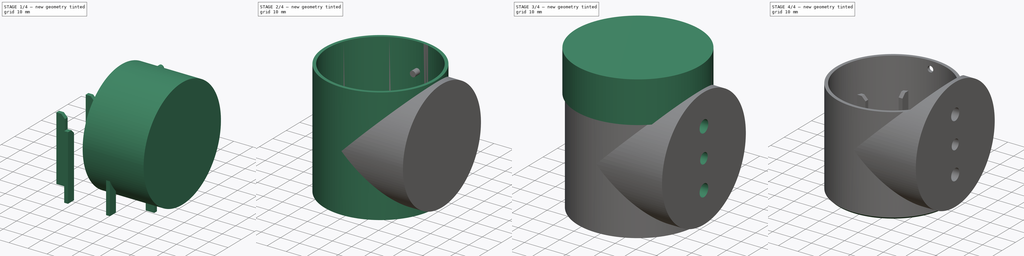
[diagram: build sequence overview — one tinted view per stage of 4, left to right]
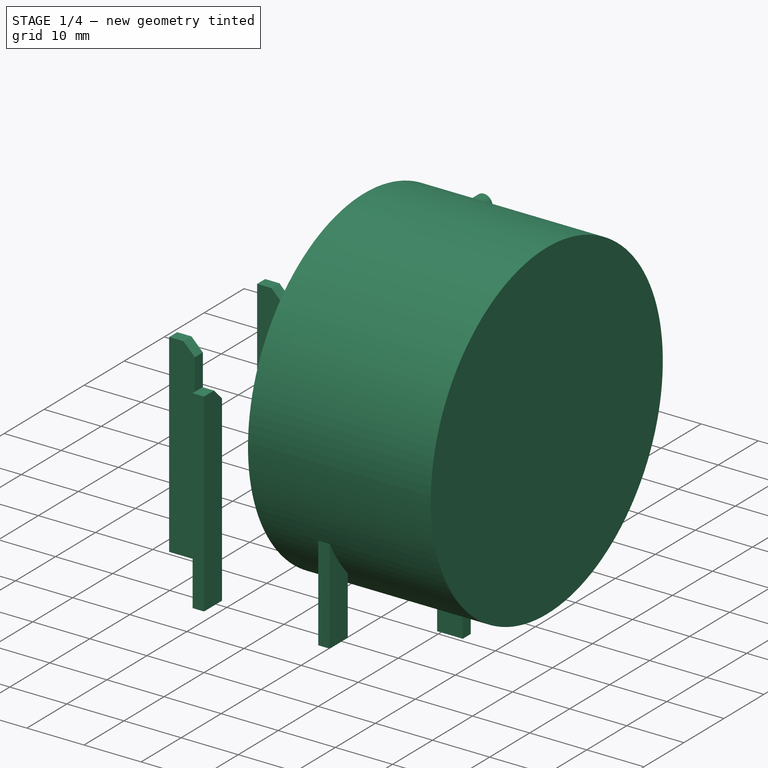
[diagram: stage 1 of 4 — iso view after this stage's code; geometry added in this stage tinted green]
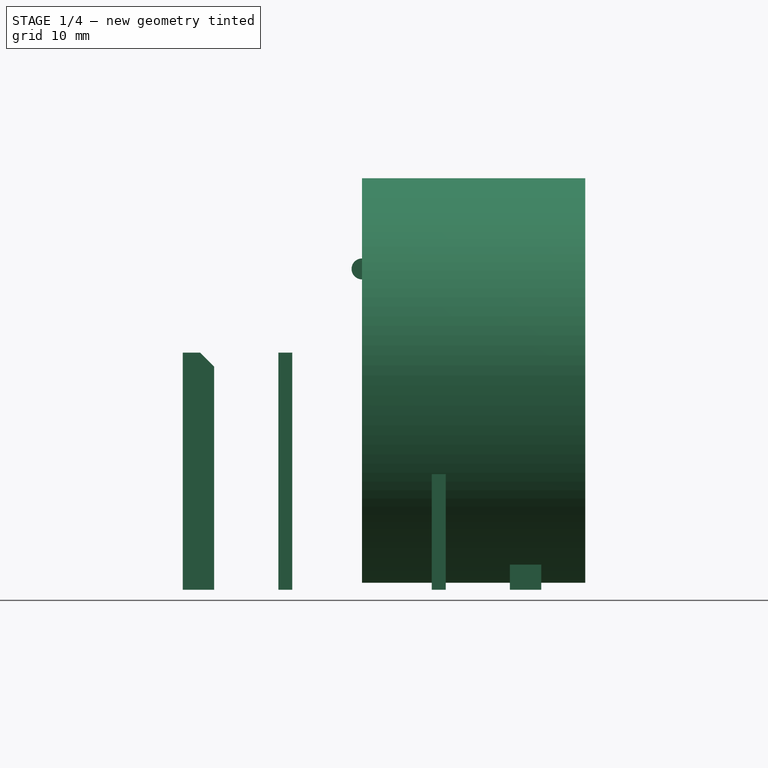
[diagram: stage 1 of 4 — front view after this stage's code; geometry added in this stage tinted green]
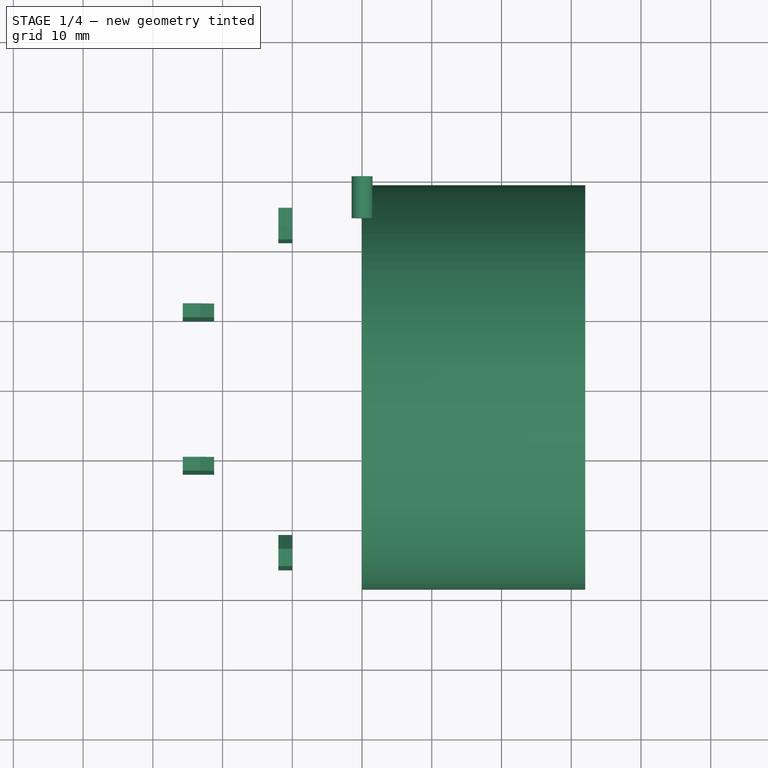
[diagram: stage 1 of 4 — top view after this stage's code; geometry added in this stage tinted green]
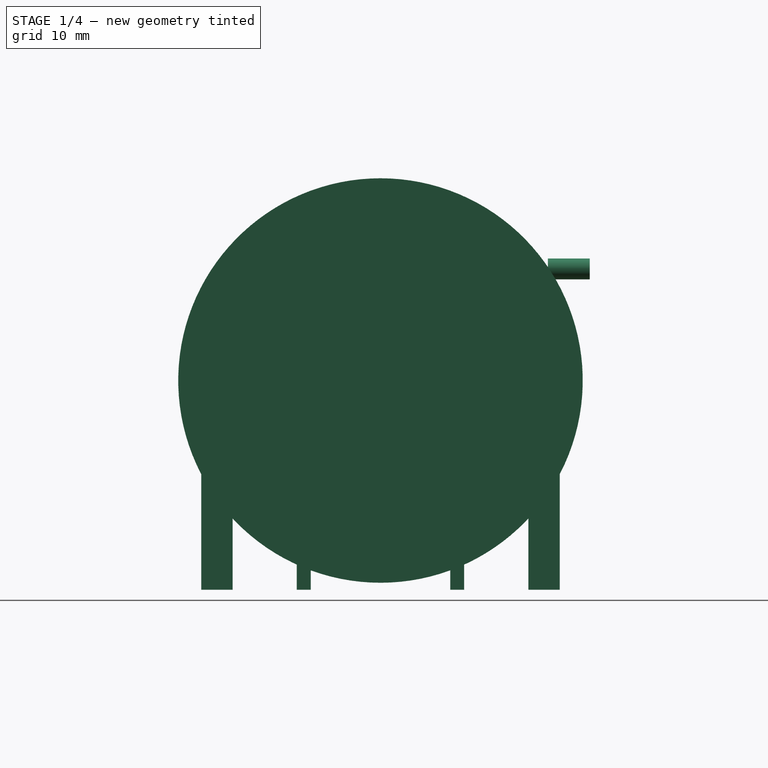
[diagram: stage 1 of 4 — right view after this stage's code; geometry added in this stage tinted green]
FCSTD DOCUMENT  (FreeCAD 0.15R4671 (Git))
Label: elevation_enclosure2
License: CreativeCommons Attribution-ShareAlike
LicenseURL: http://creativecommons.org/licenses/by-sa/4.0/
objects: Part::Cylinder×4, Sketcher::SketchObject×4, PartDesign::Pocket×3, Part::MultiFuse×2, Part::Cut×2, PartDesign::Pad×1, PartDesign::Chamfer×1, Part::Chamfer×1
note: 22 computed .brp shape members not serialized (recipe doc carries the construction recipe); baked Part::Feature solids carry a one-line shape summary decoded from their .brp

FEATURE [Part::Cylinder] Cylinder001
  Angle = 360
  Height = 32
  Placement = pos=(0,0,30) rot=(0,1,0;1.5708rad)
  Radius = 29
FEATURE [Sketcher::SketchObject] Sketch003
  sketch-geometry (36):
    g0: LineSegment StartX=-12 StartY=25.7 StartZ=0 EndX=-10 EndY=25.7 EndZ=0
    g1: LineSegment StartX=-10 StartY=25.7 StartZ=0 EndX=-10 EndY=21.2 EndZ=0
    g2: LineSegment StartX=-10 StartY=21.2 StartZ=0 EndX=-12 EndY=21.2 EndZ=0
    g3: LineSegment StartX=-12 StartY=21.2 StartZ=0 EndX=-12 EndY=25.7 EndZ=0
    g4: LineSegment StartX=10 StartY=25.7 StartZ=0 EndX=12 EndY=25.7 EndZ=0
    g5: LineSegment StartX=12 StartY=25.7 StartZ=0 EndX=12 EndY=21.2 EndZ=0
    g6: LineSegment StartX=12 StartY=21.2 StartZ=0 EndX=10 EndY=21.2 EndZ=0
    g7: LineSegment StartX=10 StartY=21.2 StartZ=0 EndX=10 EndY=25.7 EndZ=0
    g8: LineSegment StartX=-12 StartY=-21.2 StartZ=0 EndX=-10 EndY=-21.2 EndZ=0
    g9: LineSegment StartX=-10 StartY=-21.2 StartZ=0 EndX=-10 EndY=-25.7 EndZ=0
    g10: LineSegment StartX=-10 StartY=-25.7 StartZ=0 EndX=-12 EndY=-25.7 EndZ=0
    g11: LineSegment StartX=-12 StartY=-25.7 StartZ=0 EndX=-12 EndY=-21.2 EndZ=0
    g12: LineSegment StartX=10 StartY=-21.2 StartZ=0 EndX=12 EndY=-21.2 EndZ=0
    g13: LineSegment StartX=12 StartY=-21.2 StartZ=0 EndX=12 EndY=-25.7 EndZ=0
    g14: LineSegment StartX=12 StartY=-25.7 StartZ=0 EndX=10 EndY=-25.7 EndZ=0
    g15: LineSegment StartX=10 StartY=-25.7 StartZ=0 EndX=10 EndY=-21.2 EndZ=0
    g16: LineSegment StartX=-25.7 StartY=12 StartZ=0 EndX=-21.2 EndY=12 EndZ=0
    g17: LineSegment StartX=-21.2 StartY=12 StartZ=0 EndX=-21.2 EndY=10 EndZ=0
    g18: LineSegment StartX=-21.2 StartY=10 StartZ=0 EndX=-25.7 EndY=10 EndZ=0
    g19: LineSegment StartX=-25.7 StartY=10 StartZ=0 EndX=-25.7 EndY=12 EndZ=0
    g20: LineSegment StartX=-25.7 StartY=-10 StartZ=0 EndX=-21.2 EndY=-10 EndZ=0
    g21: LineSegment StartX=-21.2 StartY=-10 StartZ=0 EndX=-21.2 EndY=-12 EndZ=0
    g22: LineSegment StartX=-21.2 StartY=-12 StartZ=0 EndX=-25.7 EndY=-12 EndZ=0
    g23: LineSegment StartX=-25.7 StartY=-12 StartZ=0 EndX=-25.7 EndY=-10 EndZ=0
    g24: LineSegment StartX=21.2 StartY=12 StartZ=0 EndX=25.7 EndY=12 EndZ=0
    g25: LineSegment StartX=25.7 StartY=12 StartZ=0 EndX=25.7 EndY=10 EndZ=0
    g26: LineSegment StartX=25.7 StartY=10 StartZ=0 EndX=21.2 EndY=10 EndZ=0
    g27: LineSegment StartX=21.2 StartY=10 StartZ=0 EndX=21.2 EndY=12 EndZ=0
    g28: LineSegment StartX=21.2 StartY=-10 StartZ=0 EndX=25.7 EndY=-10 EndZ=0
    g29: LineSegment StartX=25.7 StartY=-10 StartZ=0 EndX=25.7 EndY=-12 EndZ=0
    g30: LineSegment StartX=25.7 StartY=-12 StartZ=0 EndX=21.2 EndY=-12 EndZ=0
    g31: LineSegment StartX=21.2 StartY=-12 StartZ=0 EndX=21.2 EndY=-10 EndZ=0
    g32: LineSegment [constr] StartX=-12 StartY=21.2 StartZ=0 EndX=-12 EndY=-21.2 EndZ=0
    g33: LineSegment [constr] StartX=-21.2 StartY=12 StartZ=0 EndX=21.2 EndY=12 EndZ=0
    g34: LineSegment [constr] StartX=-21.2 StartY=10 StartZ=0 EndX=-21.2 EndY=-10 EndZ=0
    g35: LineSegment [constr] StartX=-10 StartY=21.2 StartZ=0 EndX=10 EndY=21.2 EndZ=0
  constraints (98):
    c: Coincident(g0,g1)
    c: Coincident(g1,g2)
    c: Coincident(g2,g3)
    c: Coincident(g3,g0)
    c: Horizontal(g0)
    c: Horizontal(g2)
    c: Vertical(g1)
    c: Vertical(g3)
    c: Coincident(g4,g5)
    c: Coincident(g5,g6)
    c: Coincident(g6,g7)
    c: Coincident(g7,g4)
    c: Horizontal(g4)
    c: Horizontal(g6)
    c: Vertical(g5)
    c: Vertical(g7)
    c: Coincident(g8,g9)
    c: Coincident(g9,g10)
    c: Coincident(g10,g11)
    c: Coincident(g11,g8)
    c: Horizontal(g8)
    c: Horizontal(g10)
    c: Vertical(g9)
    c: Vertical(g11)
    c: Coincident(g12,g13)
    c: Coincident(g13,g14)
    c: Coincident(g14,g15)
    c: Coincident(g15,g12)
    c: Horizontal(g12)
    c: Horizontal(g14)
    c: Vertical(g13)
    c: Vertical(g15)
    c: Coincident(g16,g17)
    c: Coincident(g17,g18)
    c: Coincident(g18,g19)
    c: Coincident(g19,g16)
    c: Horizontal(g16)
    c: Horizontal(g18)
    c: Vertical(g17)
    c: Vertical(g19)
    c: Coincident(g20,g21)
    c: Coincident(g21,g22)
    c: Coincident(g22,g23)
    c: Coincident(g23,g20)
    c: Horizontal(g20)
    c: Horizontal(g22)
    c: Vertical(g21)
    c: Vertical(g23)
    c: Coincident(g24,g25)
    c: Coincident(g25,g26)
    c: Coincident(g26,g27)
    c: Coincident(g27,g24)
    c: Horizontal(g24)
    c: Horizontal(g26)
    c: Vertical(g25)
    c: Vertical(g27)
    c: Coincident(g28,g29)
    c: Coincident(g29,g30)
    c: Coincident(g30,g31)
    c: Coincident(g31,g28)
    c: Horizontal(g28)
    c: Horizontal(g30)
    c: Vertical(g29)
    c: Vertical(g31)
    c: Equal(g2,g6)
    c: Equal(g6,g27)
    c: Equal(g27,g31)
    c: Equal(g31,g12)
    c: Equal(g12,g8)
    c: Equal(g8,g21)
    c: Equal(g21,g17)
    c: Equal(g16,g1)
    c: Equal(g1,g5)
    c: Equal(g5,g26)
    c: Equal(g26,g30)
    c: Equal(g30,g15)
    c: Equal(g15,g11)
    c: Equal(g11,g20)
    c: Symmetric(g1,g6,g-2)
    c: Symmetric(g8,g12,g-2)
    c: Symmetric(g1,g8,g-1)
    c: DistanceX(g0) = 2
    c: DistanceY(g3) = 4.5
    c: Symmetric(g17,g20,g-1)
    c: Symmetric(g26,g28,g-1)
    c: Symmetric(g17,g26,g-2)
    c: Coincident(g32,g2)
    c: Coincident(g33,g16)
    c: Coincident(g34,g17)
    c: Coincident(g35,g1)
    c: Coincident(g35,g6)
    c: Coincident(g33,g24)
    c: Coincident(g34,g20)
    c: Coincident(g32,g8)
    c: Equal(g34,g35)
    c: Equal(g33,g32)
    c: DistanceX(g-1,g1) = -10
    c: DistanceX(g-1,g24) = 21.2
FEATURE [PartDesign::Pad] Pad
  Length = 34
  Length2 = 100
  Sketch = -> Sketch003
  Type = 0
FEATURE [PartDesign::Chamfer] Chamfer
  Base = -> Pad [Edge31,Edge64,Edge43,Edge94,Edge52,Edge12,Edge24,Edge82]
  Size = 2
FEATURE [Part::Cylinder] Cylinder003
  Angle = 360
  Height = 6
  Placement = pos=(0,30,46) rot=(1,0,0;1.5708rad)
  Radius = 1.5
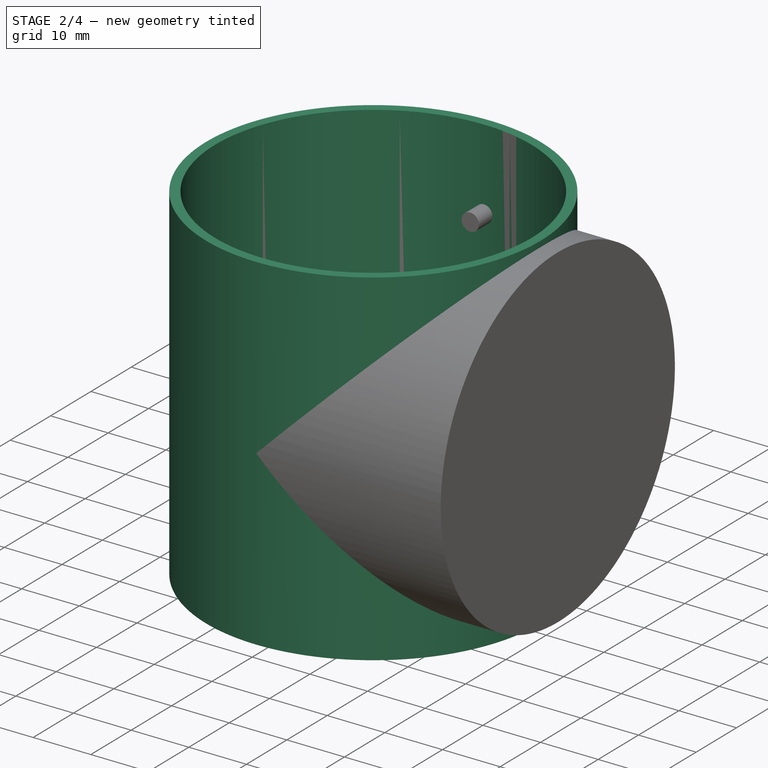
[diagram: stage 2 of 4 — iso view after this stage's code; geometry added in this stage tinted green]
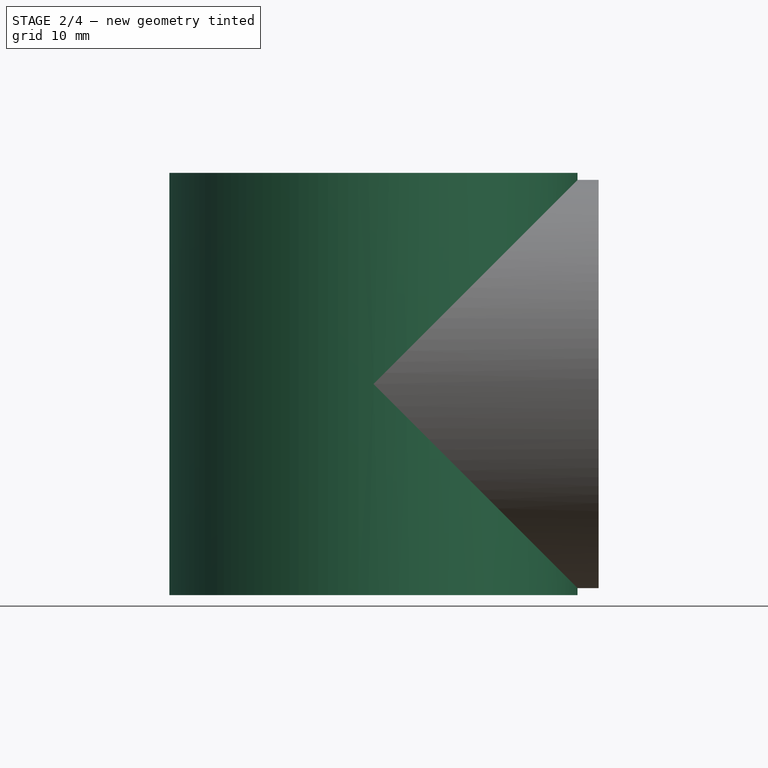
[diagram: stage 2 of 4 — front view after this stage's code; geometry added in this stage tinted green]
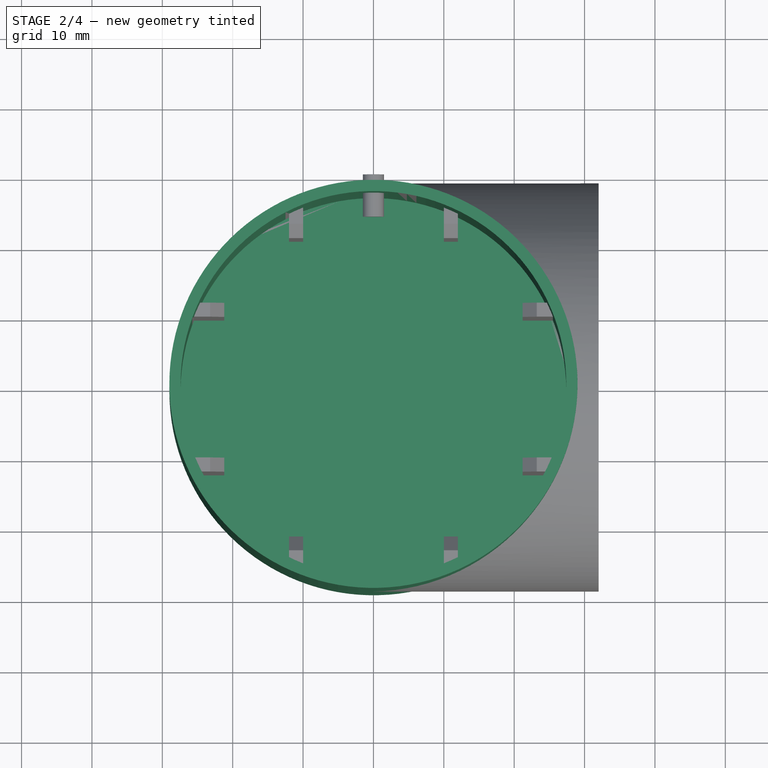
[diagram: stage 2 of 4 — top view after this stage's code; geometry added in this stage tinted green]
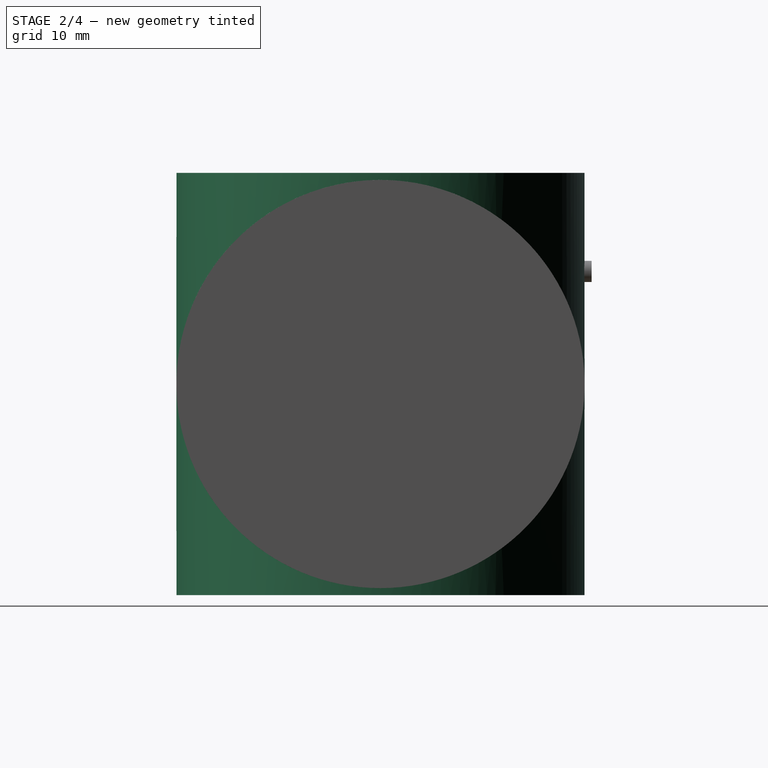
[diagram: stage 2 of 4 — right view after this stage's code; geometry added in this stage tinted green]
FEATURE [Part::Cylinder] Cylinder
  Angle = 360
  Height = 60
  Radius = 29
FEATURE [Part::MultiFuse] Fusion
  Shapes = -> [Cylinder,Cylinder001]
FEATURE [Sketcher::SketchObject] Sketch
  Placement = pos=(0,0,60) rot=(0,0,1;0rad)
  Support = -> Fusion [Face4]
  sketch-geometry (1):
    g0: Circle CenterX=0 CenterY=0 CenterZ=0 NormalX=0 NormalY=0 NormalZ=1 Radius=27.4
  constraints (2):
    c: Coincident(g0,g-1)
    c: Radius(g0) = 27.4
FEATURE [PartDesign::Pocket] Pocket
  Length = 58
  Sketch = -> Sketch
  Type = 0
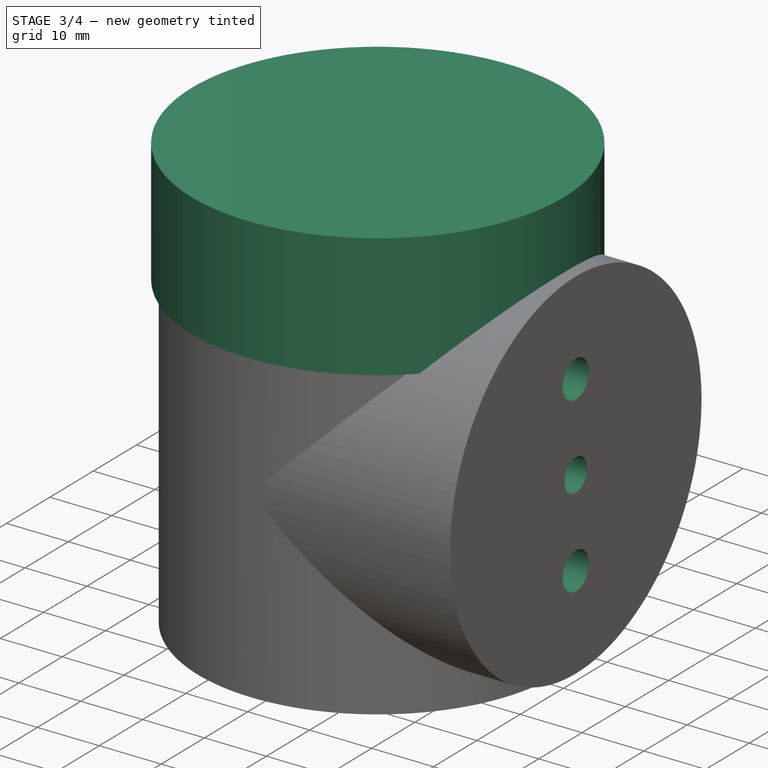
[diagram: stage 3 of 4 — iso view after this stage's code; geometry added in this stage tinted green]
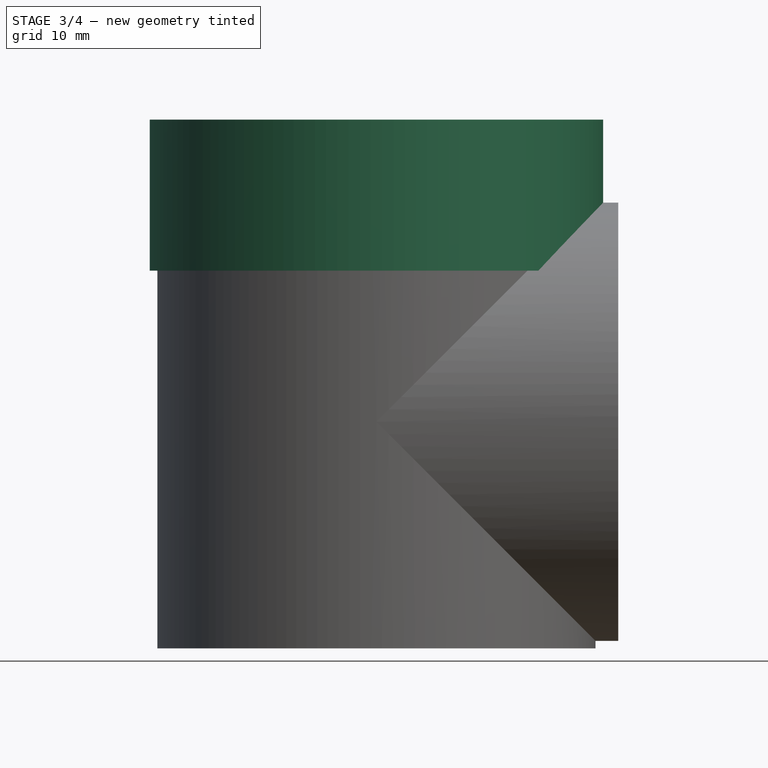
[diagram: stage 3 of 4 — front view after this stage's code; geometry added in this stage tinted green]
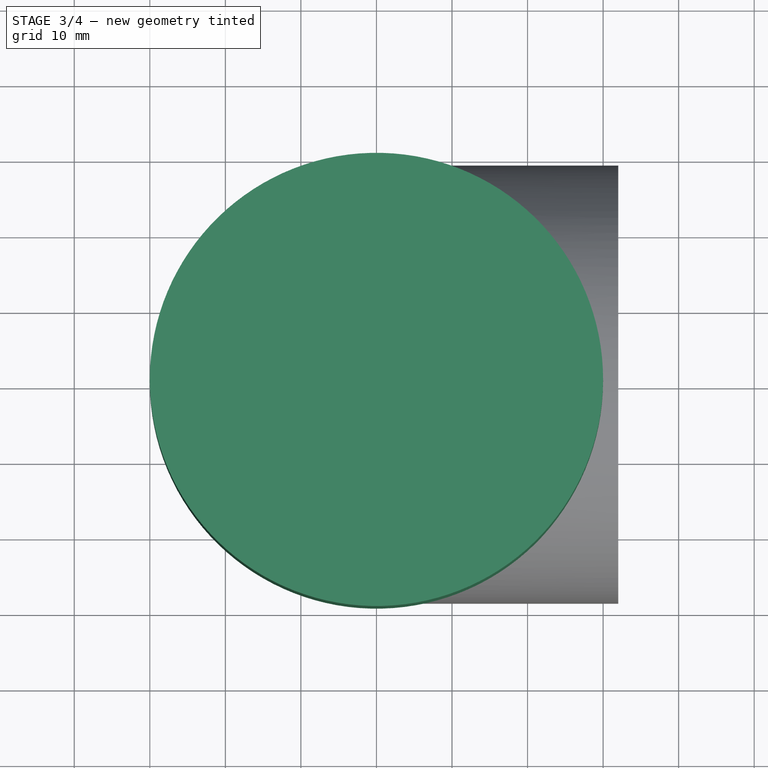
[diagram: stage 3 of 4 — top view after this stage's code; geometry added in this stage tinted green]
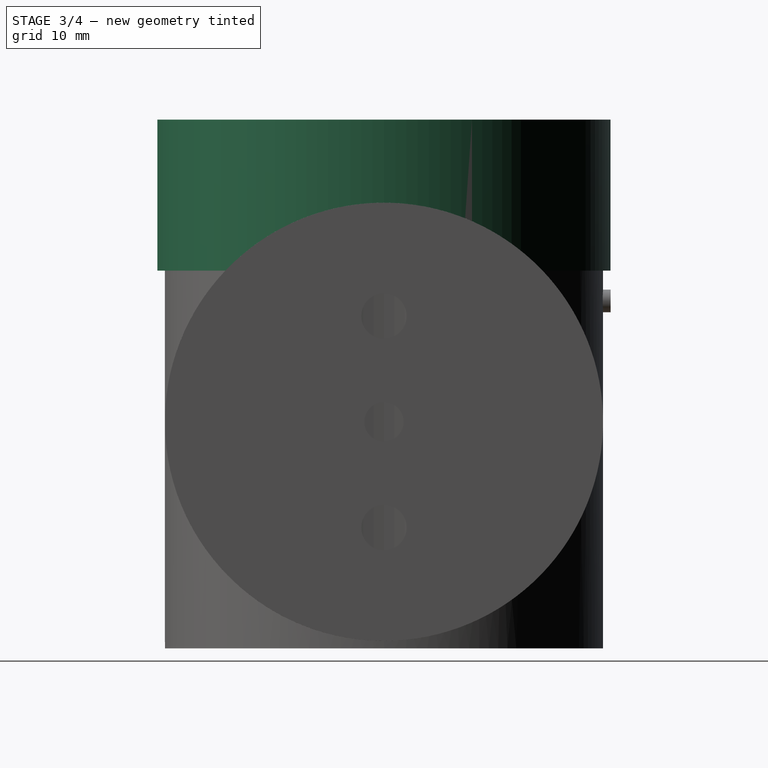
[diagram: stage 3 of 4 — right view after this stage's code; geometry added in this stage tinted green]
FEATURE [Part::Cylinder] Cylinder002
  Angle = 360
  Height = 20
  Placement = pos=(0,0,50) rot=(0,0,1;0rad)
  Radius = 30
FEATURE [Sketcher::SketchObject] Sketch002
  ExternalGeometry = -> [Pocket]
  Placement = pos=(32,0,0) rot=(0.57735,0.57735,0.57735;2.0944rad)
  Support = -> Pocket [Face5]
  sketch-geometry (3):
    g0: Circle CenterX=0 CenterY=30 CenterZ=0 NormalX=0 NormalY=0 NormalZ=1 Radius=2.6
    g1: Circle CenterX=0 CenterY=44 CenterZ=0 NormalX=0 NormalY=0 NormalZ=1 Radius=3
    g2: Circle CenterX=0 CenterY=16 CenterZ=0 NormalX=0 NormalY=0 NormalZ=1 Radius=3
  constraints (8):
    c: Radius(g0) = 2.6
    c: Equal(g1,g2)
    c: Radius(g1) = 3
    c: Coincident(g-3,g0)
    c: PointOnObject(g1,g-2)
    c: DistanceY(g1,g0) = -14
    c: PointOnObject(g2,g-2)
    c: DistanceY(g0,g2) = -14
FEATURE [PartDesign::Pocket] Pocket002
  Length = 6
  Sketch = -> Sketch002
  Type = 0
FEATURE [Sketcher::SketchObject] Sketch001
  Placement = pos=(0,0,2) rot=(0,0,1;0rad)
  Support = -> Pocket002 [Face10]
  sketch-geometry (6):
    g0: LineSegment [constr] StartX=-15.5 StartY=15.5 StartZ=0 EndX=15.5 EndY=15.5 EndZ=0
    g1: LineSegment [constr] StartX=-15.5 StartY=15.5 StartZ=0 EndX=-15.5 EndY=-15.5 EndZ=0
    g2: Circle CenterX=-15.5 CenterY=15.5 CenterZ=0 NormalX=0 NormalY=0 NormalZ=1 Radius=1.7
    g3: Circle CenterX=15.5 CenterY=15.5 CenterZ=0 NormalX=0 NormalY=0 NormalZ=1 Radius=1.7
    g4: Circle CenterX=-15.5 CenterY=-15.5 CenterZ=0 NormalX=0 NormalY=0 NormalZ=1 Radius=1.7
    g5: Circle CenterX=15.5 CenterY=-15.5 CenterZ=0 NormalX=0 NormalY=0 NormalZ=1 Radius=1.7
  constraints (15):
    c: Horizontal(g0)
    c: Coincident(g1,g0)
    c: Vertical(g1)
    c: Equal(g1,g0)
    c: DistanceX(g0) = 31
    c: Symmetric(g0,g0,g-2)
    c: Symmetric(g0,g1,g-1)
    c: Coincident(g2,g0)
    c: Coincident(g3,g0)
    c: Coincident(g4,g1)
    c: Equal(g4,g5)
    c: Equal(g5,g3)
    c: Equal(g3,g2)
    c: Radius(g2) = 1.7
    c: Symmetric(g5,g1,g-2)
FEATURE [PartDesign::Pocket] Pocket003
  Length = 5
  Sketch = -> Sketch001
  Type = 0
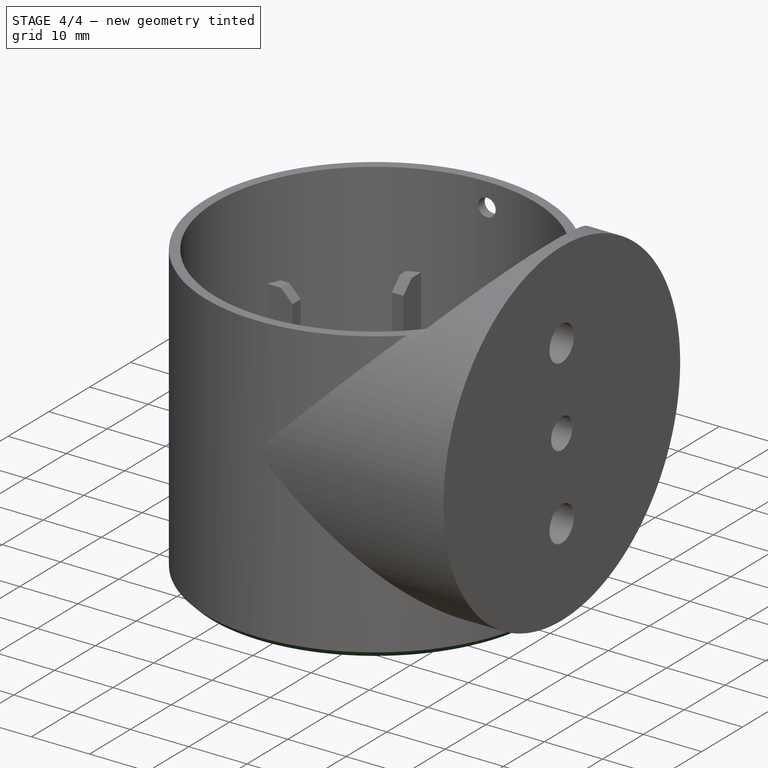
[diagram: stage 4 of 4 — iso view after this stage's code; geometry added in this stage tinted green]
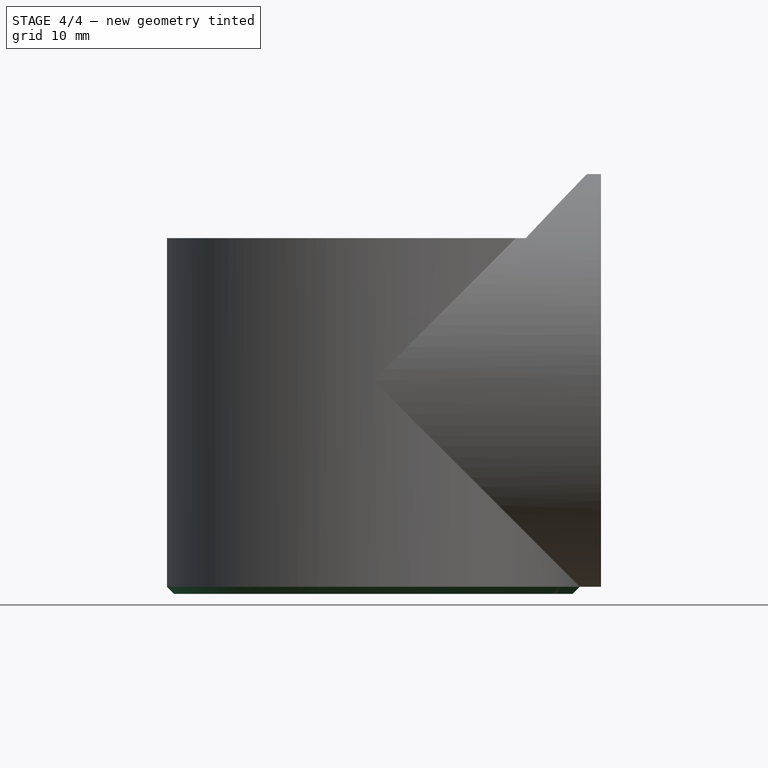
[diagram: stage 4 of 4 — front view after this stage's code; geometry added in this stage tinted green]
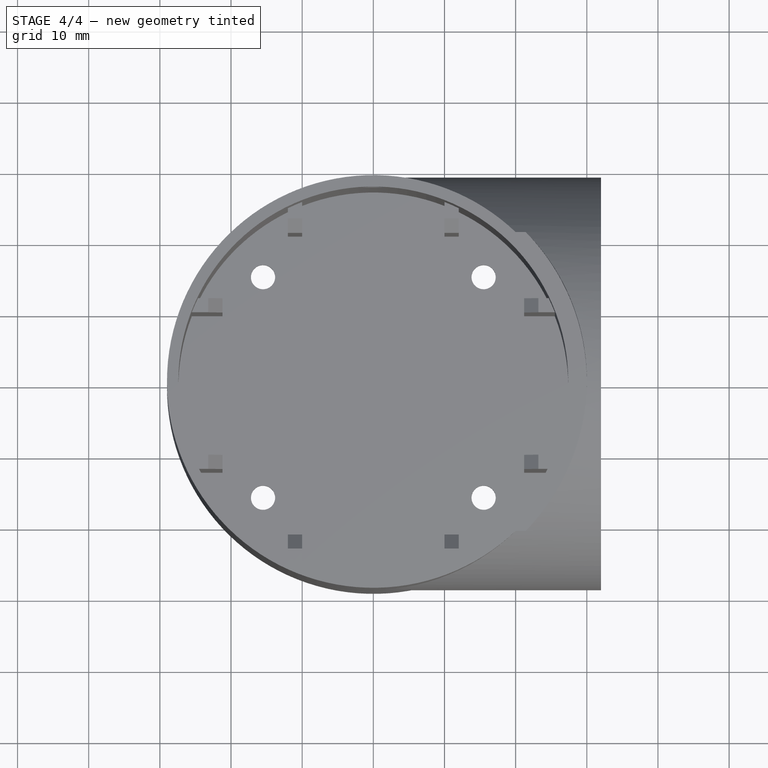
[diagram: stage 4 of 4 — top view after this stage's code; geometry added in this stage tinted green]
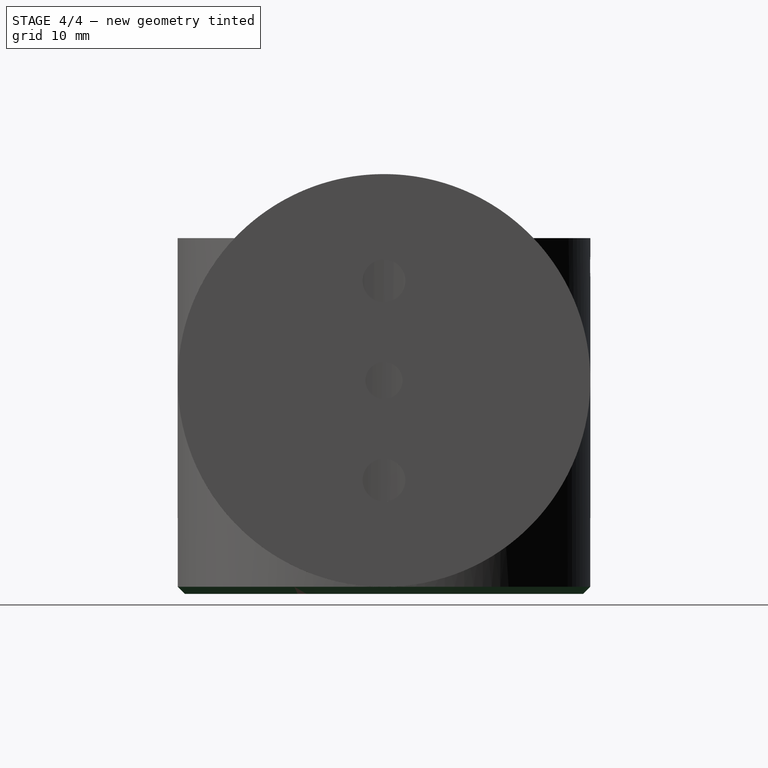
[diagram: stage 4 of 4 — right view after this stage's code; geometry added in this stage tinted green]
FEATURE [Part::Cut] Cut
  Base = -> Pocket003
  Tool = -> Cylinder002
FEATURE [Part::MultiFuse] Fusion001
  Shapes = -> [Chamfer,Cut]
FEATURE [Part::Chamfer] Chamfer001
  Base = -> Fusion001
  Edges = 1 edges r=1: [Edge171]
FEATURE [Part::Cut] Cut001
  Base = -> Chamfer001
  Tool = -> Cylinder003
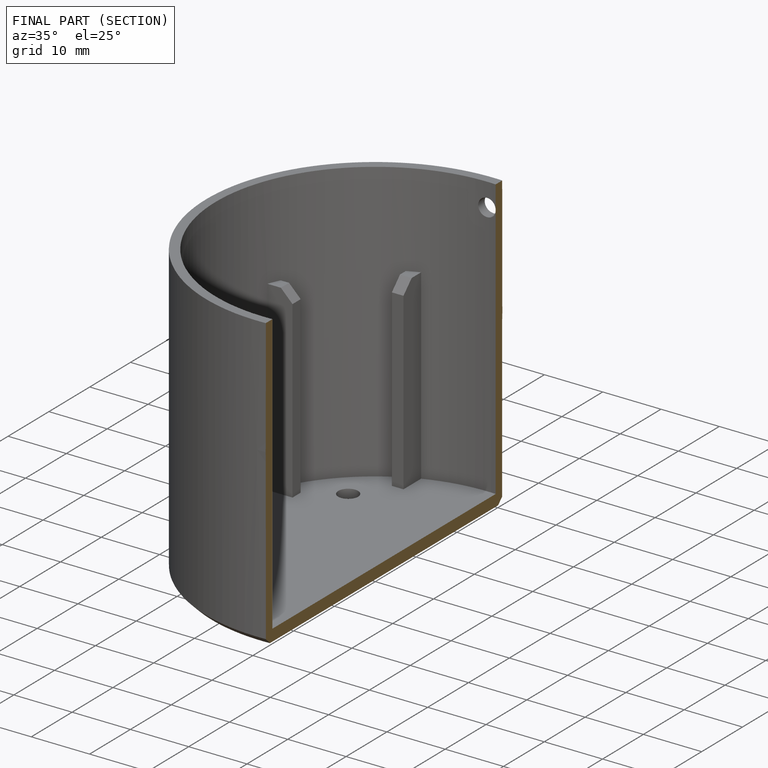
[diagram: finished part — half-section view (interior)]
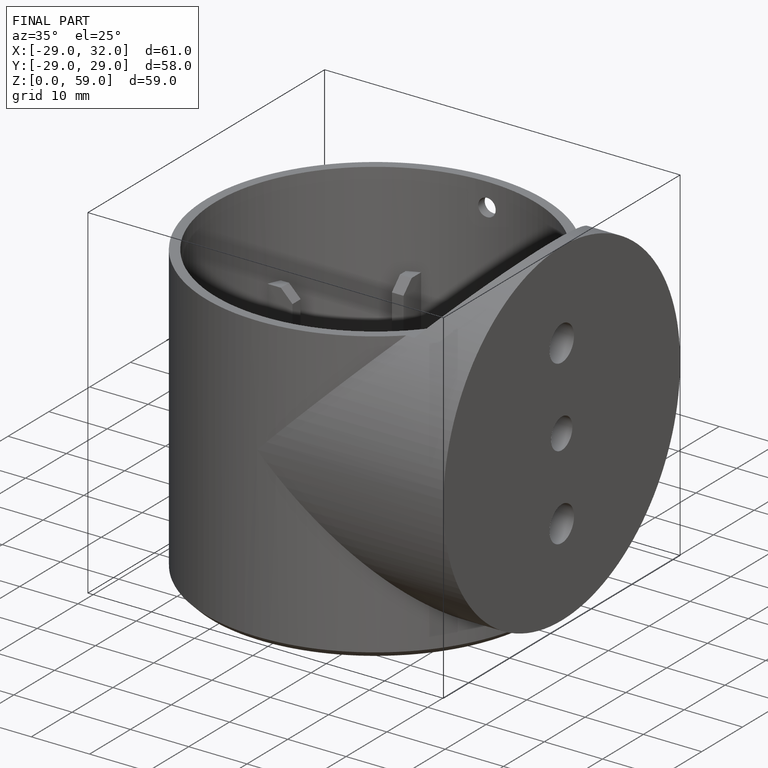
[diagram: finished part — iso view with bounding-box wireframe]
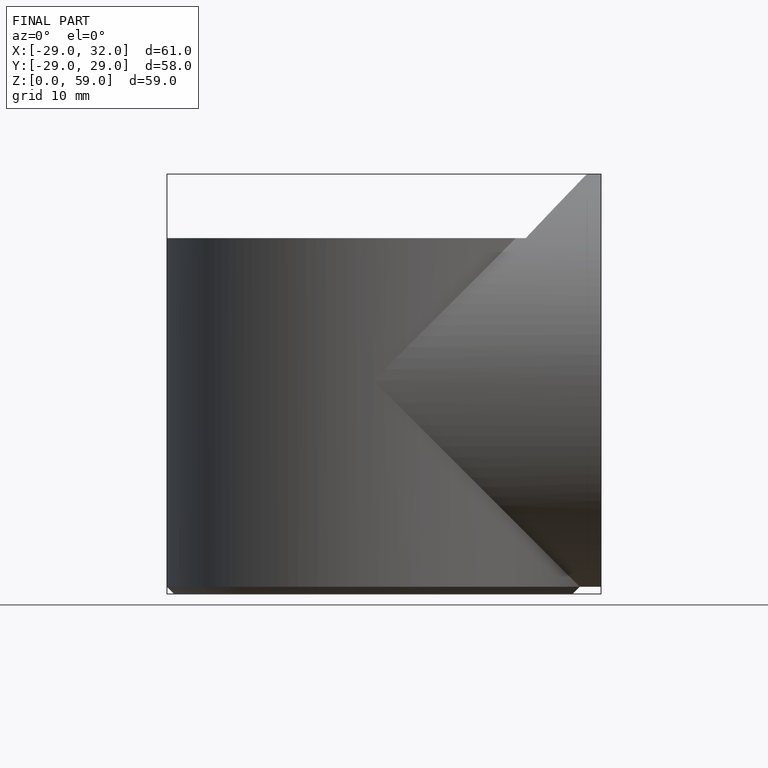
[diagram: finished part — front view with bounding-box wireframe]
